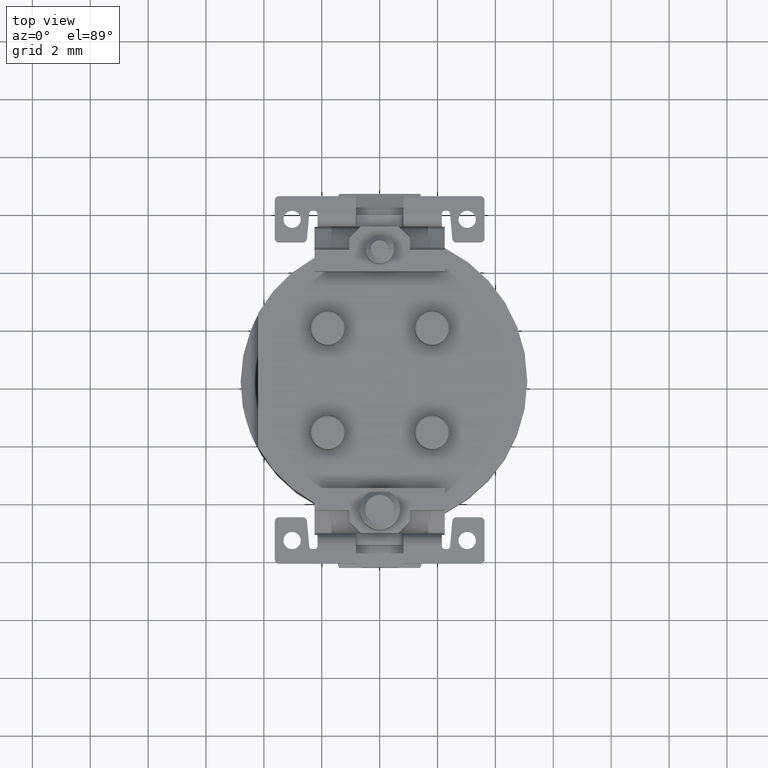
[diagram: clean part render]
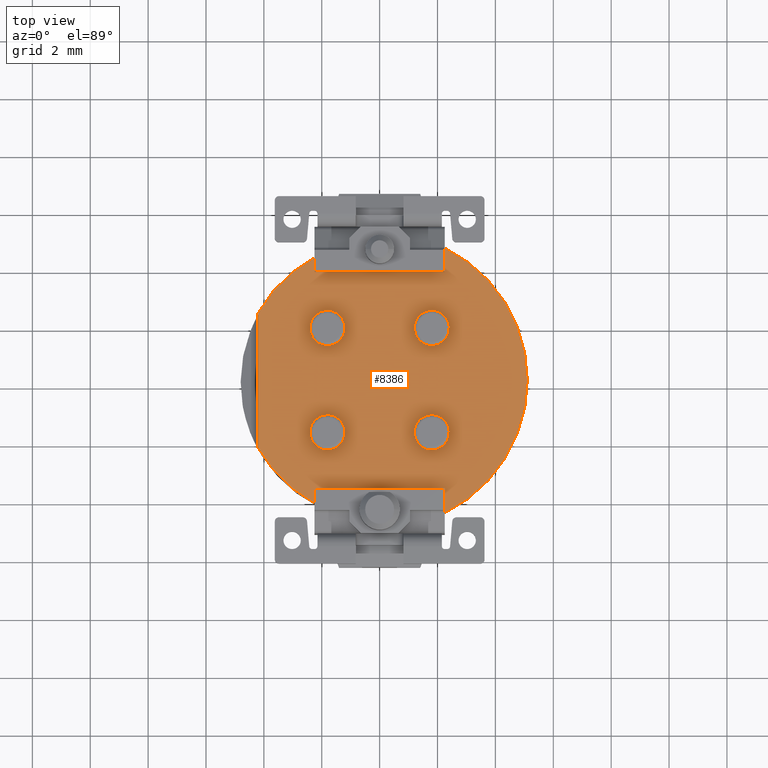
[diagram: same view with one face highlighted and labeled with its STEP entity id]
A machine part, top view. The second image highlights one B-rep face of the part: STEP entity #8386.
In plain terms, the highlighted planar face has unit normal (0, 0, 1).
Its self-contained STEP definition (entity closure, byte-faithful):
#13=DIRECTION('',(0.E0,1.E0,0.E0));
#14=VECTOR('',#13,4.647580015449E0);
#15=CARTESIAN_POINT('',(-4.2E0,-2.323790007724E0,-1.2E0));
#16=LINE('',#15,#14);
#17=DIRECTION('',(0.E0,-1.E0,0.E0));
#18=VECTOR('',#17,4.899882075308E-1);
#19=CARTESIAN_POINT('',(-2.25E0,4.239988207531E0,-1.2E0));
#20=LINE('',#19,#18);
#21=DIRECTION('',(1.E0,0.E0,0.E0));
#22=VECTOR('',#21,4.5E0);
#23=CARTESIAN_POINT('',(-2.25E0,3.75E0,-1.2E0));
#24=LINE('',#23,#22);
#25=DIRECTION('',(0.E0,1.E0,0.E0));
#26=VECTOR('',#25,8.268438907177E-1);
#27=CARTESIAN_POINT('',(2.25E0,3.75E0,-1.2E0));
#28=LINE('',#27,#26);
#29=DIRECTION('',(0.E0,1.E0,0.E0));
#30=VECTOR('',#29,8.268438907177E-1);
#31=CARTESIAN_POINT('',(2.25E0,-4.576843890718E0,-1.2E0));
#32=LINE('',#31,#30);
#33=DIRECTION('',(-1.E0,0.E0,0.E0));
#34=VECTOR('',#33,4.5E0);
#35=CARTESIAN_POINT('',(2.25E0,-3.75E0,-1.2E0));
#36=LINE('',#35,#34);
#37=DIRECTION('',(0.E0,-1.E0,0.E0));
#38=VECTOR('',#37,4.899882075308E-1);
#39=CARTESIAN_POINT('',(-2.25E0,-3.75E0,-1.2E0));
#40=LINE('',#39,#38);
#41=CARTESIAN_POINT('',(-1.803122292026E0,1.803122292026E0,-1.2E0));
#42=DIRECTION('',(0.E0,0.E0,-1.E0));
#43=DIRECTION('',(7.071067811865E-1,7.071067811865E-1,0.E0));
#44=AXIS2_PLACEMENT_3D('',#41,#42,#43);
#46=CARTESIAN_POINT('',(-1.803122292026E0,1.803122292026E0,-1.2E0));
#47=DIRECTION('',(0.E0,0.E0,-1.E0));
#48=DIRECTION('',(-7.071067811865E-1,-7.071067811865E-1,0.E0));
#49=AXIS2_PLACEMENT_3D('',#46,#47,#48);
#51=CARTESIAN_POINT('',(-1.803122292026E0,-1.803122292026E0,-1.2E0));
#52=DIRECTION('',(0.E0,0.E0,-1.E0));
#53=DIRECTION('',(7.071067811865E-1,7.071067811865E-1,0.E0));
#54=AXIS2_PLACEMENT_3D('',#51,#52,#53);
#56=CARTESIAN_POINT('',(-1.803122292026E0,-1.803122292026E0,-1.2E0));
#57=DIRECTION('',(0.E0,0.E0,-1.E0));
#58=DIRECTION('',(-7.071067811865E-1,-7.071067811865E-1,0.E0));
#59=AXIS2_PLACEMENT_3D('',#56,#57,#58);
#61=CARTESIAN_POINT('',(1.803122292026E0,-1.803122292026E0,-1.2E0));
#62=DIRECTION('',(0.E0,0.E0,-1.E0));
#63=DIRECTION('',(7.071067811865E-1,7.071067811865E-1,0.E0));
#64=AXIS2_PLACEMENT_3D('',#61,#62,#63);
#66=CARTESIAN_POINT('',(1.803122292026E0,-1.803122292026E0,-1.2E0));
#67=DIRECTION('',(0.E0,0.E0,-1.E0));
#68=DIRECTION('',(-7.071067811865E-1,-7.071067811865E-1,0.E0));
#69=AXIS2_PLACEMENT_3D('',#66,#67,#68);
#71=CARTESIAN_POINT('',(1.803122292026E0,1.803122292026E0,-1.2E0));
#72=DIRECTION('',(0.E0,0.E0,-1.E0));
#73=DIRECTION('',(7.071067811865E-1,7.071067811865E-1,0.E0));
#74=AXIS2_PLACEMENT_3D('',#71,#72,#73);
#76=CARTESIAN_POINT('',(1.803122292026E0,1.803122292026E0,-1.2E0));
#77=DIRECTION('',(0.E0,0.E0,-1.E0));
#78=DIRECTION('',(-7.071067811865E-1,-7.071067811865E-1,0.E0));
#79=AXIS2_PLACEMENT_3D('',#76,#77,#78);
#121=CARTESIAN_POINT('',(0.E0,0.E0,-1.2E0));
#122=DIRECTION('',(0.E0,0.E0,1.E0));
#123=DIRECTION('',(-8.75E-1,-4.841229182759E-1,0.E0));
#124=AXIS2_PLACEMENT_3D('',#121,#122,#123);
#190=CARTESIAN_POINT('',(0.E0,0.E0,-1.2E0));
#191=DIRECTION('',(0.E0,0.E0,1.E0));
#192=DIRECTION('',(-4.6875E-1,8.833308765689E-1,0.E0));
#193=AXIS2_PLACEMENT_3D('',#190,#191,#192);
#373=CARTESIAN_POINT('',(0.E0,0.E0,-1.2E0));
#374=DIRECTION('',(0.E0,0.E0,1.E0));
#375=DIRECTION('',(4.411764705882E-1,-8.974203707290E-1,0.E0));
#376=AXIS2_PLACEMENT_3D('',#373,#374,#375);
#6544=CARTESIAN_POINT('',(2.25E0,-3.75E0,-1.2E0));
#6545=CARTESIAN_POINT('',(-2.25E0,-3.75E0,-1.2E0));
#6546=VERTEX_POINT('',#6544);
#6547=VERTEX_POINT('',#6545);
#6548=CARTESIAN_POINT('',(-2.25E0,3.75E0,-1.2E0));
#6549=CARTESIAN_POINT('',(2.25E0,3.75E0,-1.2E0));
#6550=VERTEX_POINT('',#6548);
#6551=VERTEX_POINT('',#6549);
#6755=CARTESIAN_POINT('',(-2.25E0,-4.239988207531E0,-1.2E0));
#6757=VERTEX_POINT('',#6755);
#6759=CARTESIAN_POINT('',(-2.25E0,4.239988207531E0,-1.2E0));
#6761=VERTEX_POINT('',#6759);
#7394=CARTESIAN_POINT('',(2.25E0,-4.576843890718E0,-1.2E0));
#7396=VERTEX_POINT('',#7394);
#7399=CARTESIAN_POINT('',(2.25E0,4.576843890718E0,-1.2E0));
#7401=VERTEX_POINT('',#7399);
#7403=CARTESIAN_POINT('',(-4.2E0,-2.323790007724E0,-1.2E0));
#7404=CARTESIAN_POINT('',(-4.2E0,2.323790007724E0,-1.2E0));
#7405=VERTEX_POINT('',#7403);
#7406=VERTEX_POINT('',#7404);
#8295=CARTESIAN_POINT('',(-1.378858223314E0,2.227386360738E0,-1.2E0));
#8296=CARTESIAN_POINT('',(-2.227386360738E0,1.378858223314E0,-1.2E0));
#8297=VERTEX_POINT('',#8295);
#8298=VERTEX_POINT('',#8296);
#8307=CARTESIAN_POINT('',(-1.378858223314E0,-1.378858223314E0,-1.2E0));
#8308=CARTESIAN_POINT('',(-2.227386360738E0,-2.227386360738E0,-1.2E0));
#8309=VERTEX_POINT('',#8307);
#8310=VERTEX_POINT('',#8308);
#8319=CARTESIAN_POINT('',(2.227386360738E0,-1.378858223314E0,-1.2E0));
#8320=CARTESIAN_POINT('',(1.378858223314E0,-2.227386360738E0,-1.2E0));
#8321=VERTEX_POINT('',#8319);
#8322=VERTEX_POINT('',#8320);
#8331=CARTESIAN_POINT('',(2.227386360738E0,2.227386360738E0,-1.2E0));
#8332=CARTESIAN_POINT('',(1.378858223314E0,1.378858223314E0,-1.2E0));
#8333=VERTEX_POINT('',#8331);
#8334=VERTEX_POINT('',#8332);
#8335=CARTESIAN_POINT('',(0.E0,0.E0,-1.2E0));
#8336=DIRECTION('',(0.E0,0.E0,1.E0));
#8337=DIRECTION('',(0.E0,1.E0,0.E0));
#8338=AXIS2_PLACEMENT_3D('',#8335,#8336,#8337);
#8339=PLANE('',#8338);
#8341=ORIENTED_EDGE('',*,*,#8340,.T.);
#8343=ORIENTED_EDGE('',*,*,#8342,.F.);
#8345=ORIENTED_EDGE('',*,*,#8344,.T.);
#8347=ORIENTED_EDGE('',*,*,#8346,.T.);
#8349=ORIENTED_EDGE('',*,*,#8348,.T.);
#8351=ORIENTED_EDGE('',*,*,#8350,.F.);
#8353=ORIENTED_EDGE('',*,*,#8352,.T.);
#8355=ORIENTED_EDGE('',*,*,#8354,.T.);
#8357=ORIENTED_EDGE('',*,*,#8356,.T.);
#8359=ORIENTED_EDGE('',*,*,#8358,.F.);
#8360=EDGE_LOOP('',(#8341,#8343,#8345,#8347,#8349,#8351,#8353,#8355,#8357,
#8359));
#8361=FACE_OUTER_BOUND('',#8360,.F.);
#8363=ORIENTED_EDGE('',*,*,#8362,.F.);
#8365=ORIENTED_EDGE('',*,*,#8364,.F.);
#8366=EDGE_LOOP('',(#8363,#8365));
#8367=FACE_BOUND('',#8366,.F.);
#8369=ORIENTED_EDGE('',*,*,#8368,.F.);
#8371=ORIENTED_EDGE('',*,*,#8370,.F.);
#8372=EDGE_LOOP('',(#8369,#8371));
#8373=FACE_BOUND('',#8372,.F.);
#8375=ORIENTED_EDGE('',*,*,#8374,.F.);
#8377=ORIENTED_EDGE('',*,*,#8376,.F.);
#8378=EDGE_LOOP('',(#8375,#8377));
#8379=FACE_BOUND('',#8378,.F.);
#8381=ORIENTED_EDGE('',*,*,#8380,.F.);
#8383=ORIENTED_EDGE('',*,*,#8382,.F.);
#8384=EDGE_LOOP('',(#8381,#8383));
#8385=FACE_BOUND('',#8384,.F.);
#45=CIRCLE('',#44,6.E-1);
#50=CIRCLE('',#49,6.E-1);
#55=CIRCLE('',#54,6.E-1);
#60=CIRCLE('',#59,6.E-1);
#65=CIRCLE('',#64,6.E-1);
#70=CIRCLE('',#69,6.E-1);
#75=CIRCLE('',#74,6.E-1);
#80=CIRCLE('',#79,6.E-1);
#125=CIRCLE('',#124,4.8E0);
#194=CIRCLE('',#193,4.8E0);
#377=CIRCLE('',#376,5.1E0);
#8340=EDGE_CURVE('',#7405,#7406,#16,.T.);
#8342=EDGE_CURVE('',#6761,#7406,#194,.T.);
#8344=EDGE_CURVE('',#6761,#6550,#20,.T.);
#8346=EDGE_CURVE('',#6550,#6551,#24,.T.);
#8348=EDGE_CURVE('',#6551,#7401,#28,.T.);
#8350=EDGE_CURVE('',#7396,#7401,#377,.T.);
#8352=EDGE_CURVE('',#7396,#6546,#32,.T.);
#8354=EDGE_CURVE('',#6546,#6547,#36,.T.);
#8356=EDGE_CURVE('',#6547,#6757,#40,.T.);
#8358=EDGE_CURVE('',#7405,#6757,#125,.T.);
#8362=EDGE_CURVE('',#8297,#8298,#45,.T.);
#8364=EDGE_CURVE('',#8298,#8297,#50,.T.);
#8368=EDGE_CURVE('',#8309,#8310,#55,.T.);
#8370=EDGE_CURVE('',#8310,#8309,#60,.T.);
#8374=EDGE_CURVE('',#8321,#8322,#65,.T.);
#8376=EDGE_CURVE('',#8322,#8321,#70,.T.);
#8380=EDGE_CURVE('',#8333,#8334,#75,.T.);
#8382=EDGE_CURVE('',#8334,#8333,#80,.T.);
#8386=ADVANCED_FACE('',(#8361,#8367,#8373,#8379,#8385),#8339,.T.);